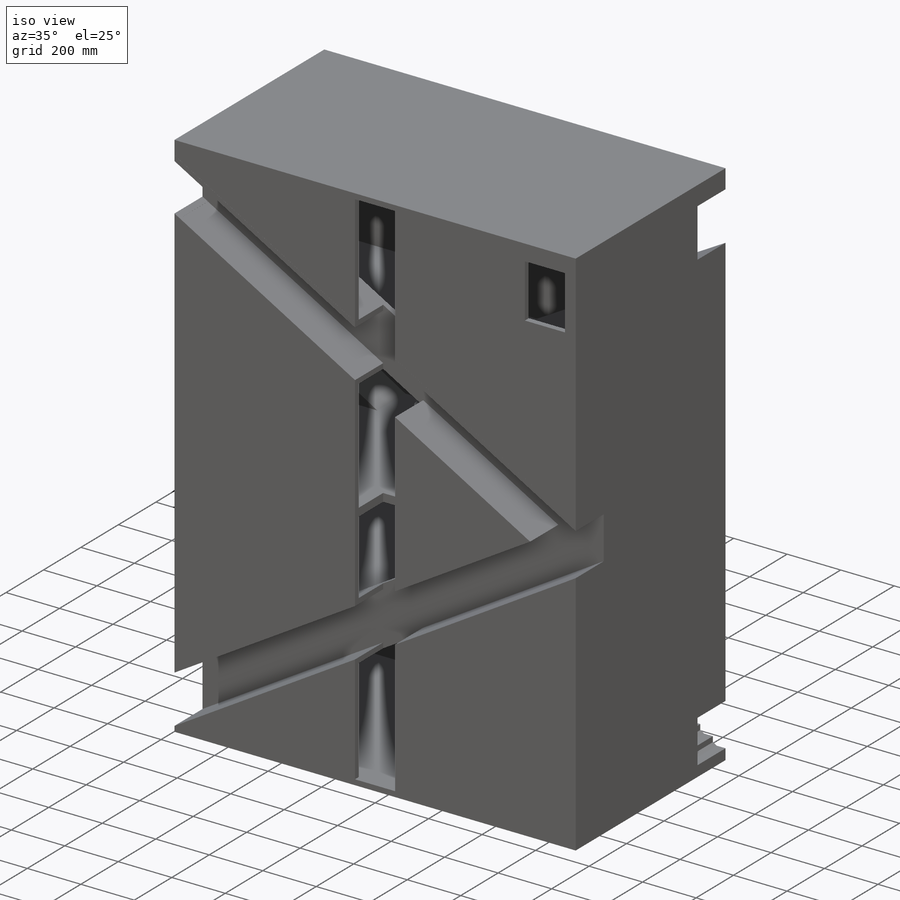
[diagram: iso view]
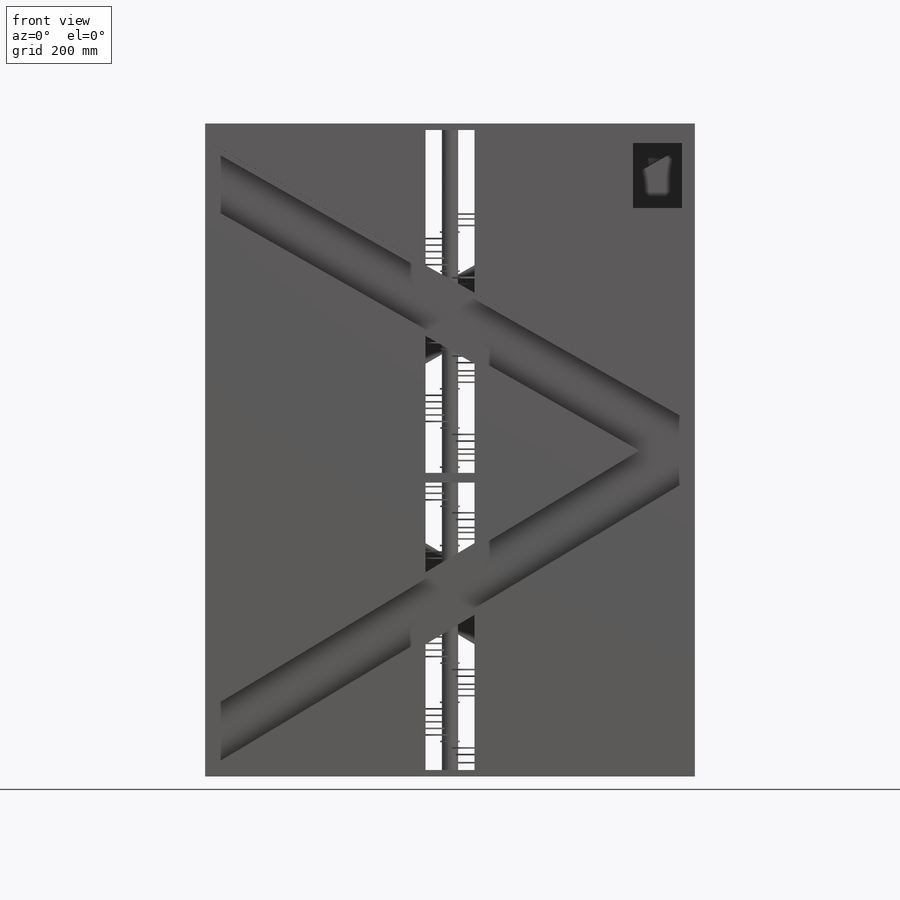
[diagram: front view]
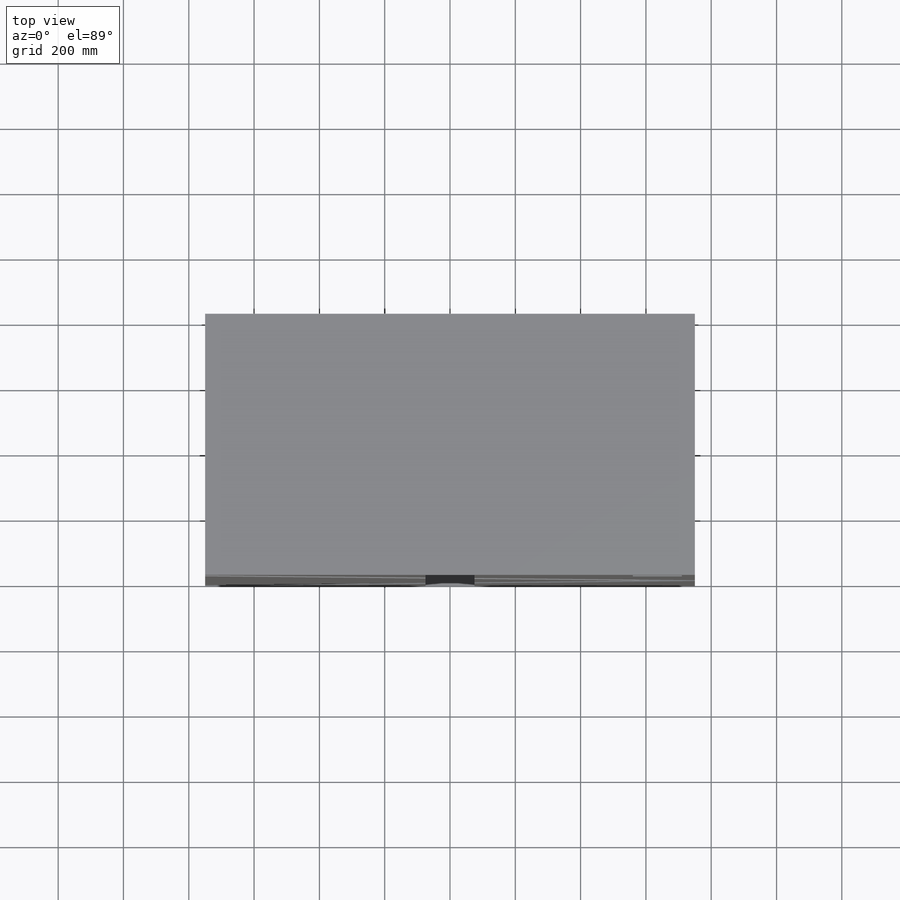
[diagram: top view]
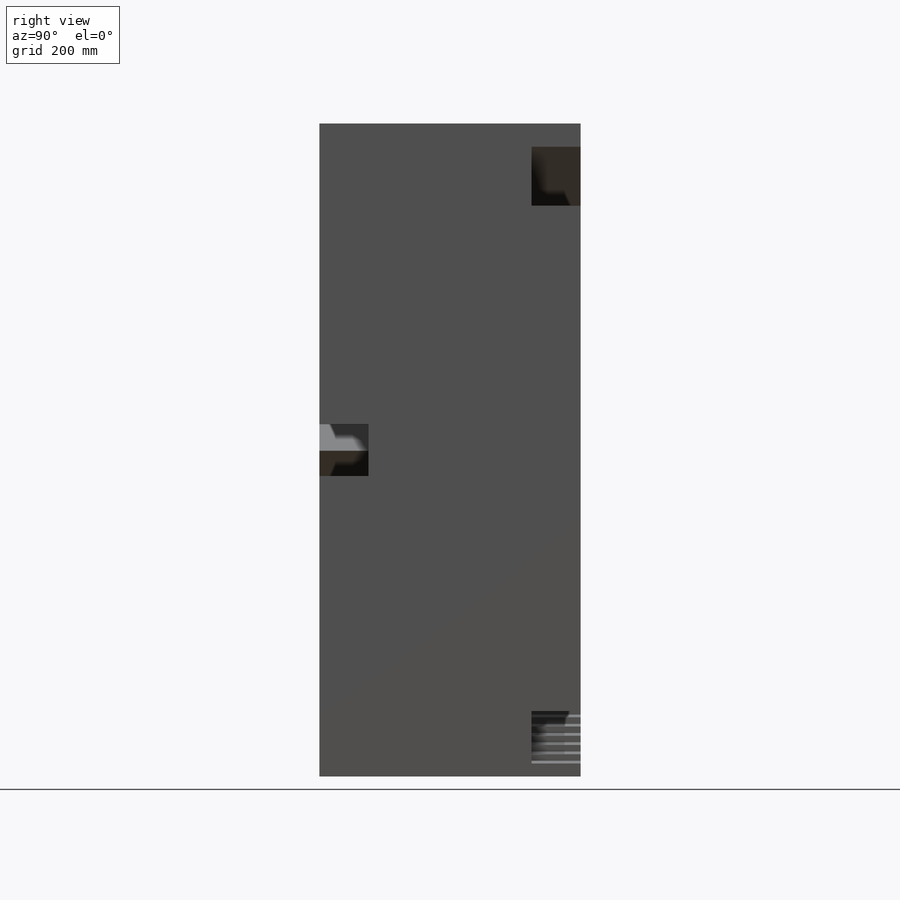
[diagram: right view]
SOLIDWORKS PART (.sldprt)
format: sldprt  version: not decoded by parser v0  size: 1,520,640 bytes
history: native  units: mm
features: sketch x44, extrude x20, material x19, pattern_linear x13, cut_extrude x10, sweep x6, plane x1, shell x1 (+13 scaffold rows collapsed)
feature tree (127):
  scaffold x13  (default folders/planes/origin — collapsed)
  material  "材质 <未指定>"
  material  "上视基准面"
  material  "右视基准面"
  material  "基准面3"
  material  "基准面4"
  material  "基准面5"
  material  "基准面6"
  material  "基准面7"
  material  "基准面8"
  material  "基准面9"
  material  "基准面10"
  material  "基准面11"
  material  "基准面12"
  material  "基准面13"
  material  "基准面14"
  material  "基准面15"
  material  "基准面16"
  material  "基准面17"
  material  "基准面18"
  plane  "前视基准面"
  sketch  "草图1"  dims[D1=800.0mm D2=1500.0mm]
  extrude  "凸台-拉伸1"  Depth=2000mm
  sketch  "草图2"  dims[D1=100.0mm D2=150.0mm]
  sketch  "草图5"  dims[c1.D1=150.0mm c1.D2=250.0mm c2.D1=0.0mm c2.D2=200.0mm c2.D3=150.0mm c2.D4=40.0mm]
  sketch  "草图6"  dims[c1.D1=150.0mm c1.D2=250.0mm c1.D3=150.0mm c2.D1=60.0mm c2.D2=250.0mm c2.D3=~280.487097mm c3.D3=90.0deg c4.D3=150.0mm c4.D4=40.0mm c4.D5=150.0mm c5.D3=250.0mm c5.D1=40.0mm c5.D2=150.0mm c6.D3=200.0mm c6.D4=60.0mm]
  cut_extrude  "切除-拉伸4"  Depth=20mm
  cut_extrude  "切除-拉伸5"  Depth=20mm
  shell  "抽壳1"  Thickness=20mm
  sketch  "草图7"  dims[D1=200.0mm D2=300.0mm]
  sweep  "切除-扫描1"
  sketch  "草图8"  dims[D1=20.0mm D2=20.0mm D3=20.0mm]
  sketch  "草图9"
  sweep  "扫描2"
  sketch  "草图10"
  sketch  "草图11"  dims[D1=300.0mm D2=150.0mm]
  cut_extrude  "切除-拉伸6"  [1 undecoded]
  sketch  "草图12"  dims[D1=150.0mm D2=300.0mm]
  sketch  "草图13"  dims[D1=100.0mm D2=150.0mm]
  sketch  "草图14"  dims[D1=300.0mm]
  sweep  "切除-扫描2"
  sketch  "草图15"  dims[D1=20.0mm D2=20.0mm D3=20.0mm]
  sketch  "草图16"  dims[D1=~248.559892mm]
  sweep  "扫描3"
  cut_extrude  "切除-拉伸8"  [1 undecoded]
  sketch  "草图17"  dims[D1=50.0mm]
  extrude  "凸台-拉伸2"  Depth=2000mm
  sketch  "草图18"  dims[D1=250.0mm]
  sketch  "草图19"  dims[D1=1500.0mm D2=800.0mm]
  extrude  "凸台-拉伸3"  Depth=30mm
  sketch  "草图20"  dims[D1=800.0mm D2=1500.0mm]
  extrude  "凸台-拉伸4"  Depth=30mm
  sketch  "草图21"  dims[D1=1500.0mm D2=800.0mm]
  extrude  "凸台-拉伸5"  Depth=30mm
  sketch  "草图23"  dims[D1=50.0mm D2=250.0mm]
  cut_extrude  "切除-拉伸10"  Depth=1734mm
  sketch  "草图24"  dims[c1.D1=125.0mm c1.D2=125.0mm c2.D2=15.0deg c2.D3=~112.251981mm c3.D3=15.0deg]
  extrude  "凸台-拉伸6"  Depth=5mm
  sketch  "草图25"  dims[c1.D1=115.0mm c1.D2=115.0mm c1.D3=~103.150169mm c2.D3=15.0deg c2.D4=~92.608103mm c3.D4=15.0deg c3.D5=~116.165283mm c4.D5=0.0deg c4.D6=125.0mm]
  extrude  "凸台-拉伸7"  Depth=5mm
  sketch  "草图26"  dims[c1.D1=115.0mm c1.D2=125.0mm c1.D3=~107.40447mm c2.D3=15.0deg c2.D4=125.0mm c3.D4=15.0deg]
  extrude  "凸台-拉伸8"  Depth=5mm
  sketch  "草图28"  dims[c1.D1=115.0mm c1.D2=115.0mm c1.D3=125.0mm c1.D4=125.0mm c2.D4=15.0deg c2.D5=~111.08147mm c3.D5=15.0deg]
  extrude  "凸台-拉伸9"  Depth=5mm
  sketch  "草图29"  dims[c1.D1=115.0mm c1.D2=115.0mm c2.D2=165.0deg c3.D2=125.0mm c3.D3=~111.08147mm c4.D3=15.0deg c4.D4=~108.253175mm c5.D4=15.0deg]
  extrude  "凸台-拉伸10"  Depth=5mm
  sketch  "草图30"  dims[c1.D1=115.0mm c1.D2=125.0mm c1.D3=~81.31728mm c2.D3=15.0deg c2.D4=125.0mm c3.D4=15.0deg]
  extrude  "凸台-拉伸11"  Depth=5mm
  sketch  "草图31"  dims[c1.D1=115.0mm c1.D2=125.0mm c1.D3=125.0mm c2.D3=15.0deg c3.D3=125.0mm c4.D3=15.0deg]
  extrude  "凸台-拉伸12"  Depth=5mm
  sketch  "草图32"  dims[c1.D1=125.0mm c1.D2=125.0mm c1.D3=125.0mm c2.D3=~13.072487deg c3.D3=125.0mm c3.D2=~111.08147mm c4.D2=15.0deg c4.D3=115.0mm c4.D4=~108.253175mm c5.D4=15.0deg]
  extrude  "凸台-拉伸13"  Depth=5mm
  sketch  "草图33"  dims[c1.D1=115.0mm c1.D2=125.0mm c1.D3=115.0mm c2.D3=15.0deg c2.D4=115.0mm c3.D4=15.0deg]
  extrude  "凸台-拉伸14"  Depth=5mm
  sketch  "草图34"  dims[c1.D1=125.0mm c1.D2=115.0mm c1.D3=125.0mm c2.D3=15.0deg c3.D3=~104.594247mm c4.D3=15.0deg]
  extrude  "凸台-拉伸15"  Depth=5mm
  sketch  "草图35"  dims[c1.D1=125.0mm c1.D2=115.0mm c1.D3=125.0mm c2.D3=15.0deg c2.D4=~95.230228mm c3.D4=15.0deg]
  extrude  "凸台-拉伸16"  Depth=5mm
  sketch  "草图36"  dims[c1.D1=125.0mm c1.D2=~108.104777mm c2.D2=15.0deg]
  extrude  "凸台-拉伸17"  Depth=5mm
  pattern_linear  "阵列(线性)1"  Count1=8 Count2=1 Spacing1=240mm Spacing2=10mm
  pattern_linear  "阵列(线性)2"  Count1=7 Count2=1 Spacing1=240mm Spacing2=10mm
  pattern_linear  "阵列(线性)3"  Count1=7 Count2=1 Spacing1=240mm Spacing2=10mm
  pattern_linear  "阵列(线性)4"  Count1=7 Count2=1 Spacing1=240mm Spacing2=10mm
  pattern_linear  "阵列(线性)5"  Count1=7 Count2=1 Spacing1=240mm Spacing2=10mm
  pattern_linear  "阵列(线性)6"  Count1=7 Count2=1 Spacing1=240mm Spacing2=10mm
  pattern_linear  "阵列(线性)7"  Count1=7 Count2=1 Spacing1=240mm Spacing2=10mm
  pattern_linear  "阵列(线性)8"  Count1=7 Count2=1 Spacing1=240mm Spacing2=10mm
  pattern_linear  "阵列(线性)9"  Count1=7 Count2=1 Spacing1=240mm Spacing2=10mm
  pattern_linear  "阵列(线性)10"  Count1=7 Count2=1 Spacing1=240mm Spacing2=10mm
  pattern_linear  "阵列(线性)11"  Count1=7 Count2=1 Spacing1=240mm Spacing2=10mm
  pattern_linear  "阵列(线性)12"  Count1=7 Count2=1 Spacing1=240mm Spacing2=10mm
  sketch  "草图37"  dims[D1=1500.0mm D2=800.0mm D3=4444.0mm]
  cut_extrude  "切除-拉伸11"  Depth=2550mm
  sketch  "草图38"
  extrude  "凸台-拉伸18"  Depth=150mm
  sketch  "草图39"
  extrude  "凸台-拉伸19"  Depth=150mm
  sketch  "草图42"
  sketch  "草图43"
  sweep  "切除-扫描4"
  sketch  "草图44"
  sketch  "草图45"
  sweep  "切除-扫描5"
  sketch  "草图46"  dims[D1=150.0mm D2=150.0mm]
  cut_extrude  "切除-拉伸14"  Depth=38mm
  sketch  "草图47"  dims[D1=150.0mm D2=150.0mm]
  cut_extrude  "切除-拉伸15"  Depth=38mm
  sketch  "草图48"  dims[D1=20.0mm]
  extrude  "凸台-拉伸20"  Depth=150mm
  pattern_linear  "阵列(线性)13"  Count1=32 Count2=1 Spacing1=55mm Spacing2=10mm
  sketch  "草图49"  dims[D1=360.0mm]
  cut_extrude  "切除-拉伸16"  Depth=150mm
  sketch  "草图50"
  cut_extrude  "切除-拉伸17"  Depth=20mm
decode coverage: 77 of 94 modeling features carry decoded parameters
note: ~ marks probable driven/reference dimensions
note: 2 parameter values undecoded
summary: profile_refs inferred from adjacent sketches, not decoded
note: suppression state not decoded; provenance and decode notes live in map.json
